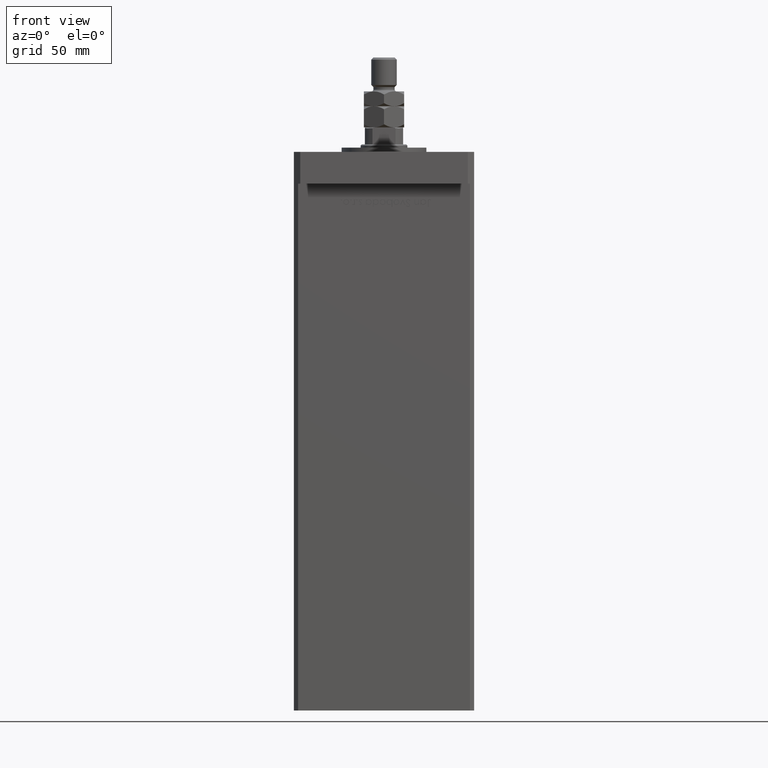
[diagram: clean part render]
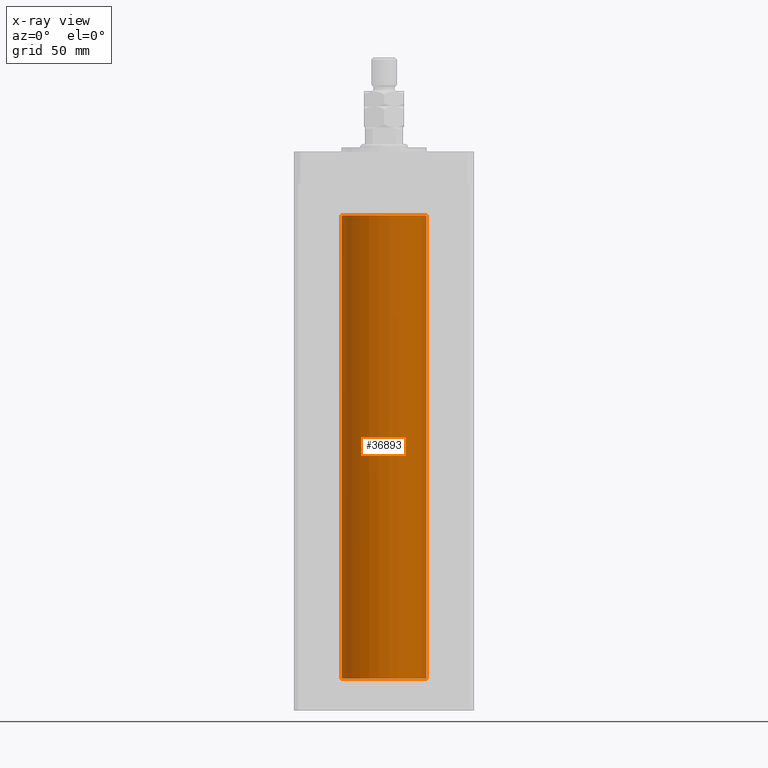
[diagram: x-ray — body ghosted, one internal face saturated and labeled with its STEP entity id]
A machine part, front view, then the same camera in x-ray: the body is ghosted and one INTERNAL B-rep face — a face not visible from any outside direction — is saturated and labeled: STEP entity #36893.
In plain terms, the highlighted cylindrical surface (partial cylindrical patch) has radius 20 mm, axis along (-0, -0, -1).
Its self-contained STEP definition (entity closure, byte-faithful):
#1205 = LINE ( 'NONE', #31041, #11854 ) ;
#1396 = DIRECTION ( 'NONE',  ( -0.000000000000000000, 0.000000000000000000, 1.000000000000000000 ) ) ;
#4728 = CYLINDRICAL_SURFACE ( 'NONE', #26152, 20.00000000000000000 ) ;
#5029 = CARTESIAN_POINT ( 'NONE',  ( 0.000000000000000000, 0.000000000000000000, 218.5000000000000000 ) ) ;
#5211 = LINE ( 'NONE', #30611, #50025 ) ;
#6502 = AXIS2_PLACEMENT_3D ( 'NONE', #5029, #1396, #43252 ) ;
#11854 = VECTOR ( 'NONE', #39944, 1000.000000000000000 ) ;
#15306 = CARTESIAN_POINT ( 'NONE',  ( 0.000000000000000000, 0.000000000000000000, 0.000000000000000000 ) ) ;
#17578 = FACE_OUTER_BOUND ( 'NONE', #42814, .T. ) ;
#21764 = DIRECTION ( 'NONE',  ( -0.000000000000000000, -0.000000000000000000, -1.000000000000000000 ) ) ;
#23240 = ORIENTED_EDGE ( 'NONE', *, *, #42385, .F. ) ;
#25234 = CIRCLE ( 'NONE', #6502, 20.00000000000000000 ) ;
#25393 = CARTESIAN_POINT ( 'NONE',  ( 0.000000000000000000, 0.000000000000000000, 218.5000000000000000 ) ) ;
#25885 = DIRECTION ( 'NONE',  ( -0.000000000000000000, -0.000000000000000000, -1.000000000000000000 ) ) ;
#26152 = AXIS2_PLACEMENT_3D ( 'NONE', #25393, #21764, #38761 ) ;
#26769 = EDGE_CURVE ( 'NONE', #34060, #29363, #5211, .T. ) ;
#26809 = VERTEX_POINT ( 'NONE', #34256 ) ;
#27840 = DIRECTION ( 'NONE',  ( 1.000000000000000000, 0.000000000000000000, 0.000000000000000000 ) ) ;
#29363 = VERTEX_POINT ( 'NONE', #30246 ) ;
#30246 = CARTESIAN_POINT ( 'NONE',  ( 20.00000000000000000, 2.449293598294706513E-15, 0.000000000000000000 ) ) ;
#30611 = CARTESIAN_POINT ( 'NONE',  ( 20.00000000000000000, 2.449293598294706513E-15, 218.5000000000000000 ) ) ;
#31041 = CARTESIAN_POINT ( 'NONE',  ( -20.00000000000000000, 0.000000000000000000, 218.5000000000000000 ) ) ;
#31167 = AXIS2_PLACEMENT_3D ( 'NONE', #15306, #35926, #27840 ) ;
#31434 = VERTEX_POINT ( 'NONE', #45926 ) ;
#34060 = VERTEX_POINT ( 'NONE', #51557 ) ;
#34256 = CARTESIAN_POINT ( 'NONE',  ( -20.00000000000000000, 0.000000000000000000, 218.5000000000000000 ) ) ;
#35193 = ORIENTED_EDGE ( 'NONE', *, *, #35269, .T. ) ;
#35269 = EDGE_CURVE ( 'NONE', #26809, #34060, #25234, .T. ) ;
#35760 = EDGE_CURVE ( 'NONE', #26809, #31434, #1205, .T. ) ;
#35926 = DIRECTION ( 'NONE',  ( -0.000000000000000000, 0.000000000000000000, 1.000000000000000000 ) ) ;
#36893 = ADVANCED_FACE ( 'NONE', ( #17578 ), #4728, .F. ) ;
#38761 = DIRECTION ( 'NONE',  ( -1.000000000000000000, 0.000000000000000000, 0.000000000000000000 ) ) ;
#39712 = ORIENTED_EDGE ( 'NONE', *, *, #26769, .T. ) ;
#39944 = DIRECTION ( 'NONE',  ( -0.000000000000000000, -0.000000000000000000, -1.000000000000000000 ) ) ;
#40575 = ORIENTED_EDGE ( 'NONE', *, *, #35760, .F. ) ;
#42385 = EDGE_CURVE ( 'NONE', #31434, #29363, #53486, .T. ) ;
#42814 = EDGE_LOOP ( 'NONE', ( #35193, #39712, #23240, #40575 ) ) ;
#43252 = DIRECTION ( 'NONE',  ( 1.000000000000000000, 0.000000000000000000, 0.000000000000000000 ) ) ;
#45926 = CARTESIAN_POINT ( 'NONE',  ( -20.00000000000000000, 0.000000000000000000, 0.000000000000000000 ) ) ;
#50025 = VECTOR ( 'NONE', #25885, 1000.000000000000000 ) ;
#51557 = CARTESIAN_POINT ( 'NONE',  ( 20.00000000000000000, 2.449293598294706513E-15, 218.5000000000000000 ) ) ;
#53486 = CIRCLE ( 'NONE', #31167, 20.00000000000000000 ) ;